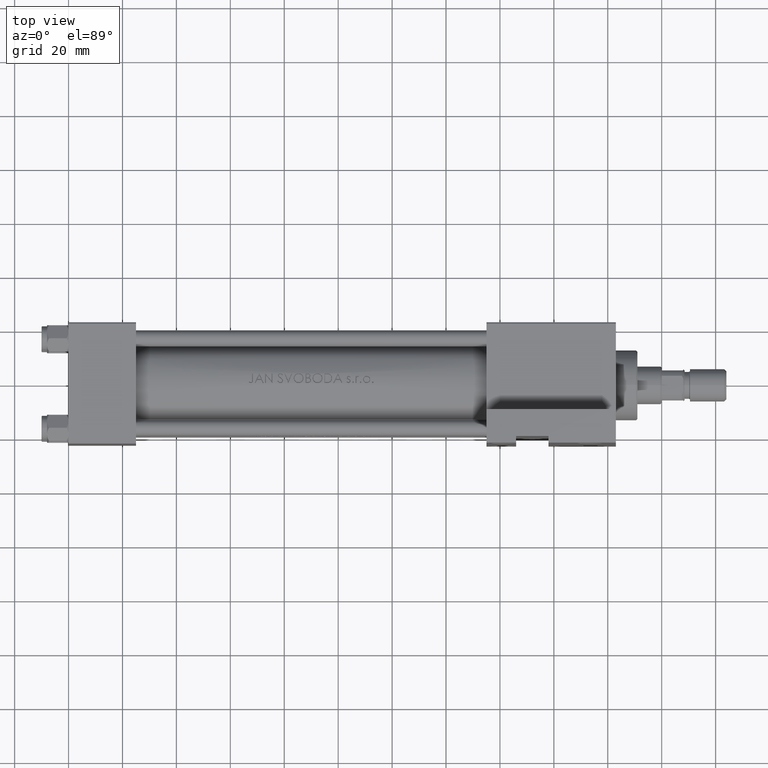
[diagram: clean part render]
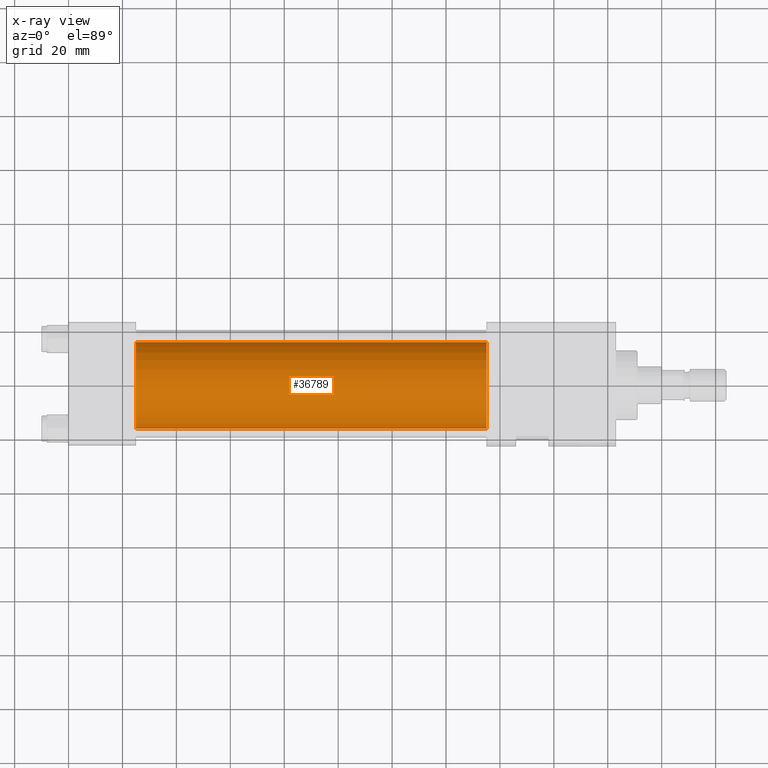
[diagram: x-ray — body ghosted, one internal face saturated and labeled with its STEP entity id]
A machine part, top view, then the same camera in x-ray: the body is ghosted and one INTERNAL B-rep face — a face not visible from any outside direction — is saturated and labeled: STEP entity #36789.
In plain terms, the highlighted cylindrical surface (partial cylindrical patch) has radius 16 mm, axis along (-1, -0, 0).
Its self-contained STEP definition (entity closure, byte-faithful):
#2260 = DIRECTION ( 'NONE',  ( -1.000000000000000000, -0.000000000000000000, -0.000000000000000000 ) ) ;
#2535 = DIRECTION ( 'NONE',  ( -1.000000000000000000, -0.000000000000000000, -0.000000000000000000 ) ) ;
#9170 = AXIS2_PLACEMENT_3D ( 'NONE', #40517, #2535, #32229 ) ;
#9995 = CARTESIAN_POINT ( 'NONE',  ( 155.0000000000000000, 6.123233995736727825E-17, 15.50000000000000355 ) ) ;
#11528 = VERTEX_POINT ( 'NONE', #46143 ) ;
#11549 = DIRECTION ( 'NONE',  ( -1.000000000000000000, -0.000000000000000000, -0.000000000000000000 ) ) ;
#11859 = CARTESIAN_POINT ( 'NONE',  ( 25.00000000000000000, 2.020667218593132311E-15, -16.49999999999999645 ) ) ;
#13101 = VERTEX_POINT ( 'NONE', #11859 ) ;
#16093 = DIRECTION ( 'NONE',  ( 0.000000000000000000, 0.000000000000000000, -1.000000000000000000 ) ) ;
#16387 = EDGE_LOOP ( 'NONE', ( #35690, #43978, #39486, #43346 ) ) ;
#17005 = CIRCLE ( 'NONE', #24780, 16.00000000000000000 ) ;
#17237 = VERTEX_POINT ( 'NONE', #24633 ) ;
#20709 = CIRCLE ( 'NONE', #47941, 16.00000000000000000 ) ;
#21006 = LINE ( 'NONE', #39973, #34855 ) ;
#23418 = CARTESIAN_POINT ( 'NONE',  ( 25.00000000000000000, 6.123233995736727825E-17, -0.4999999999999970024 ) ) ;
#23692 = VECTOR ( 'NONE', #11549, 1000.000000000000000 ) ;
#24633 = CARTESIAN_POINT ( 'NONE',  ( 25.00000000000000000, 6.123233995736727825E-17, 15.50000000000000355 ) ) ;
#24780 = AXIS2_PLACEMENT_3D ( 'NONE', #36339, #47555, #32910 ) ;
#25552 = EDGE_CURVE ( 'NONE', #17237, #13101, #20709, .T. ) ;
#28350 = FACE_OUTER_BOUND ( 'NONE', #16387, .T. ) ;
#28752 = VERTEX_POINT ( 'NONE', #9995 ) ;
#31404 = DIRECTION ( 'NONE',  ( 1.000000000000000000, 0.000000000000000000, 0.000000000000000000 ) ) ;
#32229 = DIRECTION ( 'NONE',  ( 0.000000000000000000, 0.000000000000000000, 1.000000000000000000 ) ) ;
#32910 = DIRECTION ( 'NONE',  ( 0.000000000000000000, 0.000000000000000000, -1.000000000000000000 ) ) ;
#32958 = LINE ( 'NONE', #36388, #23692 ) ;
#34855 = VECTOR ( 'NONE', #2260, 1000.000000000000000 ) ;
#35690 = ORIENTED_EDGE ( 'NONE', *, *, #37987, .T. ) ;
#36339 = CARTESIAN_POINT ( 'NONE',  ( 155.0000000000000000, 6.123233995736727825E-17, -0.4999999999999970024 ) ) ;
#36388 = CARTESIAN_POINT ( 'NONE',  ( 155.0000000000000000, 2.020667218593132311E-15, -16.49999999999999645 ) ) ;
#36789 = ADVANCED_FACE ( 'NONE', ( #28350 ), #40031, .F. ) ;
#37086 = EDGE_CURVE ( 'NONE', #28752, #17237, #21006, .T. ) ;
#37987 = EDGE_CURVE ( 'NONE', #28752, #11528, #17005, .T. ) ;
#39486 = ORIENTED_EDGE ( 'NONE', *, *, #25552, .F. ) ;
#39973 = CARTESIAN_POINT ( 'NONE',  ( 155.0000000000000000, 6.123233995736727825E-17, 15.50000000000000355 ) ) ;
#40031 = CYLINDRICAL_SURFACE ( 'NONE', #9170, 16.00000000000000000 ) ;
#40517 = CARTESIAN_POINT ( 'NONE',  ( 155.0000000000000000, 6.123233995736727825E-17, -0.4999999999999970024 ) ) ;
#43346 = ORIENTED_EDGE ( 'NONE', *, *, #37086, .F. ) ;
#43890 = EDGE_CURVE ( 'NONE', #11528, #13101, #32958, .T. ) ;
#43978 = ORIENTED_EDGE ( 'NONE', *, *, #43890, .T. ) ;
#46143 = CARTESIAN_POINT ( 'NONE',  ( 155.0000000000000000, 2.020667218593132311E-15, -16.49999999999999645 ) ) ;
#47555 = DIRECTION ( 'NONE',  ( 1.000000000000000000, 0.000000000000000000, 0.000000000000000000 ) ) ;
#47941 = AXIS2_PLACEMENT_3D ( 'NONE', #23418, #31404, #16093 ) ;